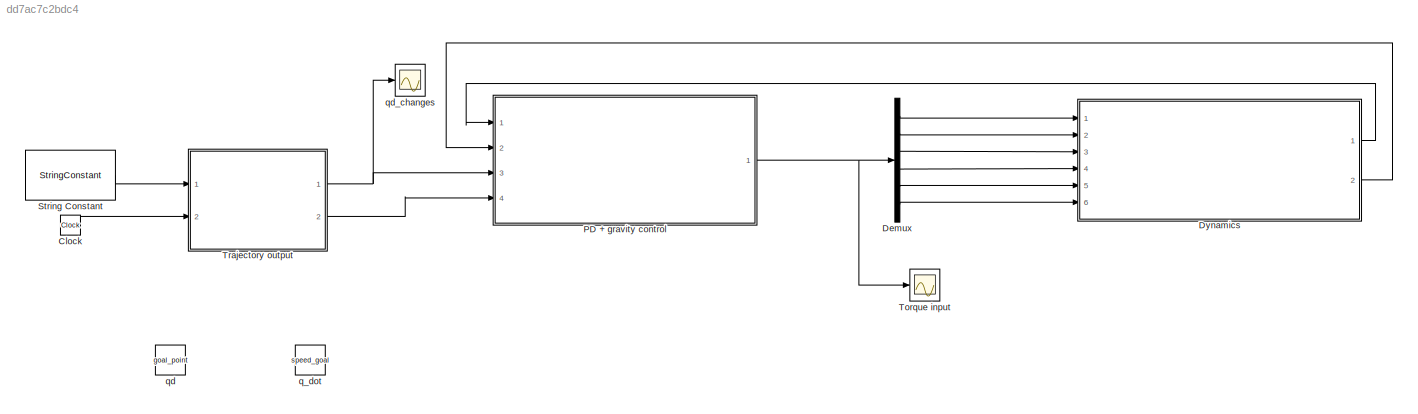
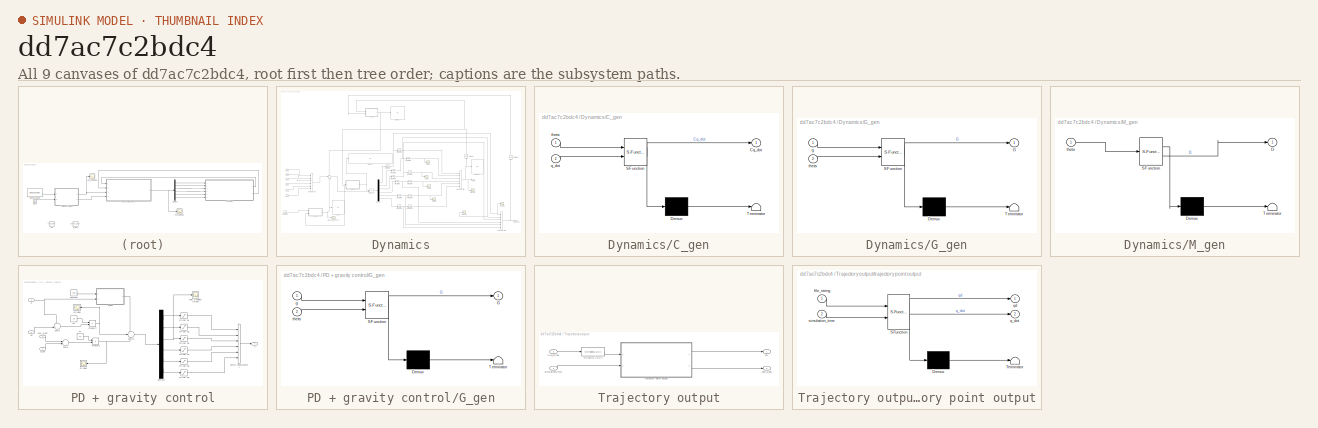
[diagram: thumbnail index - all 9 canvases of the model, root first then tree order]
MODEL slx_dd7ac7c2bdc4
KIND model
CONFIG AbsTol = 1e-4
CONFIG EnableMultiTasking = off
CONFIG FixedStep = 0.001
CONFIG MaxStep = auto
CONFIG MinStep = auto
CONFIG RelTol = 1e-5
CONFIG SampleTimeConstraint = Unconstrained
CONFIG SolverName = FixedStepAuto
CONFIG StartTime = 0.0
CONFIG StopTime = 6.5
BLOCK [Clock] Clock
BLOCK [Demux] Demux
  Outputs = 6
  Ports = [1, 6]
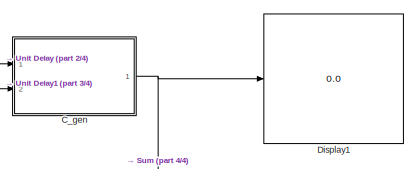
[diagram: Dynamics - part 1/4, top center region]
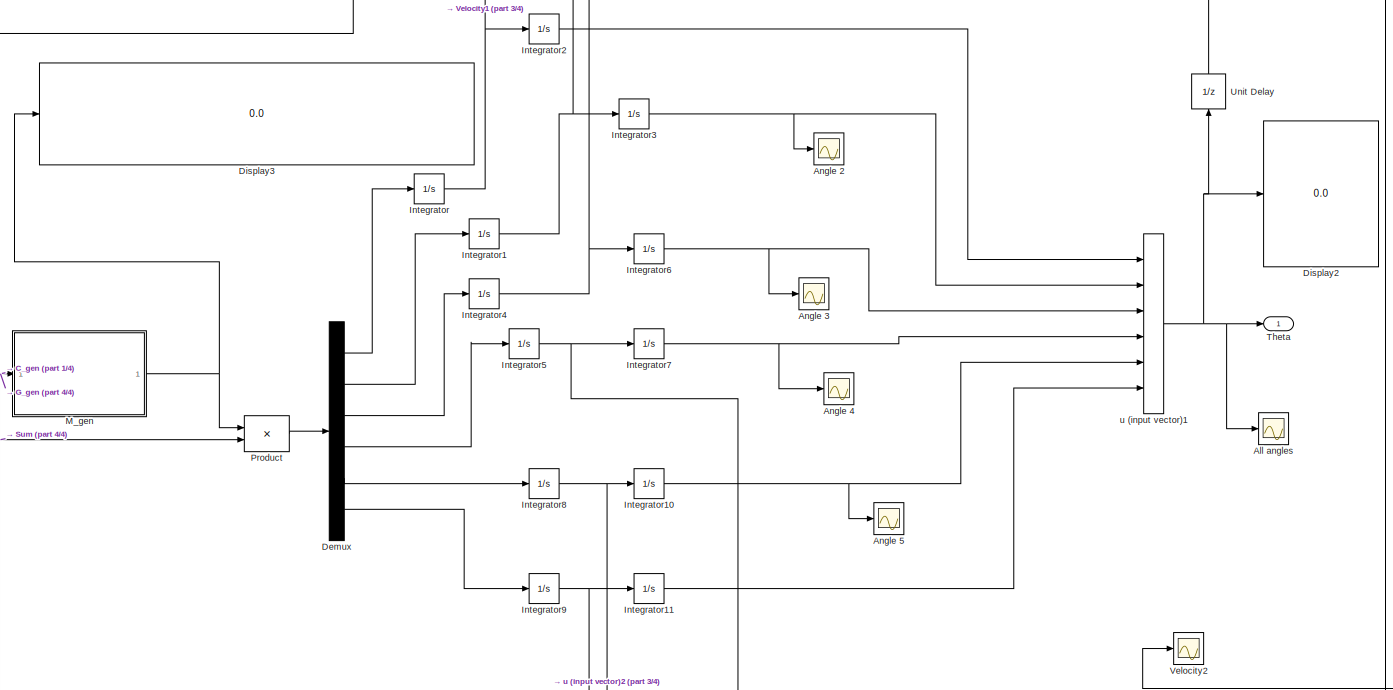
[diagram: Dynamics - part 2/4, central region]
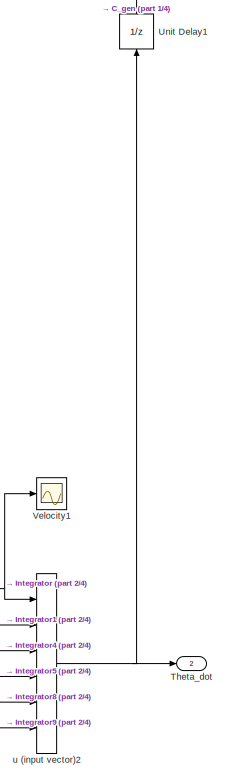
[diagram: Dynamics - part 3/4, bottom right region]
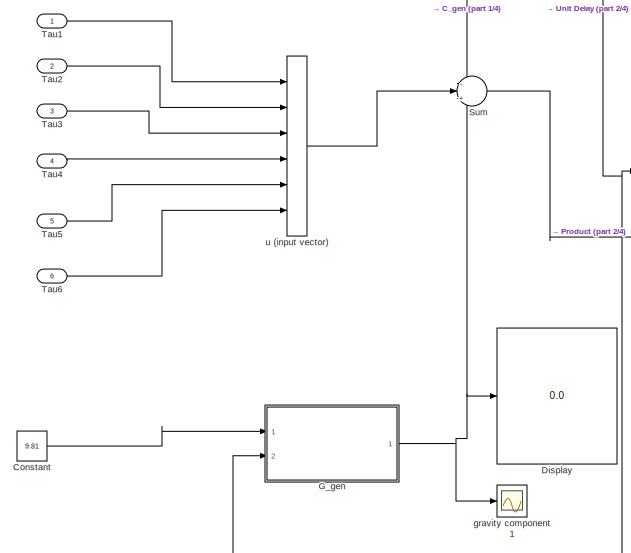
[diagram: Dynamics - part 4/4, bottom left region]
BLOCK [SubSystem] Dynamics
  Ports = [6, 2]
  RequestExecContextInheritance = off
BLOCK [Scope] Dynamics/All angles
  Floating = off
  NumInputPorts = 1
  Ports = [1]
  ScopeSpecificationString = Simulink.scopes.TimeScopeBlockCfg('CurrentConfiguration', extmgr.ConfigurationSet(extmgr.Configuration('Core','General UI',true),extmgr.Configuration('Core','Source UI',true),extmgr.Configuration('Sources','WiredSimulink',true,'DataLoggingVariableName','ScopeData1'),extmgr.Configuration('Visuals','Time Domain',true,'SerializedDisplays',{struct('MinYLimReal','-3.14674','MaxYLimReal','3.14088','YLab...<+1836ch>
BLOCK [Scope] Dynamics/Angle 2
  Floating = off
  NumInputPorts = 1
  Ports = [1]
  ScopeSpecificationString = Simulink.scopes.TimeScopeBlockCfg('CurrentConfiguration', extmgr.ConfigurationSet(extmgr.Configuration('Core','General UI',true),extmgr.Configuration('Core','Source UI',true),extmgr.Configuration('Sources','WiredSimulink',true,'DataLoggingVariableName','ScopeData1'),extmgr.Configuration('Visuals','Time Domain',true,'SerializedDisplays',{struct('MinYLimReal','-1.96506','MaxYLimReal','1.96573','YLab...<+1745ch>
BLOCK [Scope] Dynamics/Angle 3
  Floating = off
  NumInputPorts = 1
  Ports = [1]
  ScopeSpecificationString = Simulink.scopes.TimeScopeBlockCfg('CurrentConfiguration', extmgr.ConfigurationSet(extmgr.Configuration('Core','General UI',true),extmgr.Configuration('Core','Source UI',true),extmgr.Configuration('Sources','WiredSimulink',true,'DataLoggingVariableName','ScopeData2'),extmgr.Configuration('Visuals','Time Domain',true,'SerializedDisplays',{struct('MinYLimReal','-0.2775','MaxYLimReal','1.10636','YLabe...<+1742ch>
BLOCK [Scope] Dynamics/Angle 4
  Floating = off
  NumInputPorts = 1
  Ports = [1]
  ScopeSpecificationString = Simulink.scopes.TimeScopeBlockCfg('CurrentConfiguration', extmgr.ConfigurationSet(extmgr.Configuration('Core','General UI',true),extmgr.Configuration('Core','Source UI',true),extmgr.Configuration('Sources','WiredSimulink',true,'DataLoggingVariableName','ScopeData3'),extmgr.Configuration('Visuals','Time Domain',true,'SerializedDisplays',{struct('MinYLimReal','-0.08661','MaxYLimReal','0.77951','YLab...<+1447ch>
BLOCK [Scope] Dynamics/Angle 5
  Floating = off
  NumInputPorts = 1
  Ports = [1]
  ScopeSpecificationString = Simulink.scopes.TimeScopeBlockCfg('CurrentConfiguration', extmgr.ConfigurationSet(extmgr.Configuration('Core','General UI',true),extmgr.Configuration('Core','Source UI',true),extmgr.Configuration('Sources','WiredSimulink',true,'DataLoggingVariableName','ScopeData4'),extmgr.Configuration('Visuals','Time Domain',true,'SerializedDisplays',{struct('MinYLimReal','-0.04213','MaxYLimReal','0.37916','YLab...<+1419ch>
BLOCK [SubSystem] Dynamics/C_gen
  ErrorFcn = Stateflow.Translate.translate
  PermitHierarchicalResolution = ExplicitOnly
  Ports = [2, 1]
  RequestExecContextInheritance = off
  SFBlockType = MATLAB Function
  TreatAsAtomicUnit = on
BLOCK [Demux] Dynamics/C_gen/ Demux 
  Outputs = 1
  Ports = [1, 1]
BLOCK [S-Function] Dynamics/C_gen/ SFunction 
  EnableBusSupport = on
  FunctionName = sf_sfun
  PortCounts = [2 2]
  Ports = [2, 2]
  SFcnIsStateOwnerBlock = off
  SFunctionDeploymentMode = off
  Tag = Stateflow S-Function 2
BLOCK [Terminator] Dynamics/C_gen/ Terminator 
BLOCK [Outport] Dynamics/C_gen/Cq_dot
BLOCK [Inport] Dynamics/C_gen/q_dot
  Port = 2
BLOCK [Inport] Dynamics/C_gen/theta
BLOCK [Constant] Dynamics/Constant
  Value = 9.81
BLOCK [Demux] Dynamics/Demux
  Outputs = 6
  Ports = [1, 6]
BLOCK [Display] Dynamics/Display
  Decimation = 6
  Format = long
  Ports = [1]
BLOCK [Display] Dynamics/Display1
  Decimation = 6
  Format = long
  Ports = [1]
BLOCK [Display] Dynamics/Display2
  Decimation = 6
  Format = long
  Ports = [1]
BLOCK [Display] Dynamics/Display3
  Decimation = 36
  Ports = [1]
BLOCK [SubSystem] Dynamics/G_gen
  ErrorFcn = Stateflow.Translate.translate
  PermitHierarchicalResolution = ExplicitOnly
  Ports = [2, 1]
  RequestExecContextInheritance = off
  SFBlockType = MATLAB Function
  TreatAsAtomicUnit = on
BLOCK [Demux] Dynamics/G_gen/ Demux 
  Outputs = 1
  Ports = [1, 1]
BLOCK [S-Function] Dynamics/G_gen/ SFunction 
  EnableBusSupport = on
  FunctionName = sf_sfun
  PortCounts = [2 2]
  Ports = [2, 2]
  SFcnIsStateOwnerBlock = off
  SFunctionDeploymentMode = off
  Tag = Stateflow S-Function 1
BLOCK [Terminator] Dynamics/G_gen/ Terminator 
BLOCK [Outport] Dynamics/G_gen/G
BLOCK [Inport] Dynamics/G_gen/g
BLOCK [Inport] Dynamics/G_gen/theta
  Port = 2
BLOCK [Integrator] Dynamics/Integrator
  Ports = [1, 1]
BLOCK [Integrator] Dynamics/Integrator1
  Ports = [1, 1]
BLOCK [Integrator] Dynamics/Integrator10
  Ports = [1, 1]
BLOCK [Integrator] Dynamics/Integrator11
  Ports = [1, 1]
BLOCK [Integrator] Dynamics/Integrator2
  Ports = [1, 1]
BLOCK [Integrator] Dynamics/Integrator3
  Ports = [1, 1]
BLOCK [Integrator] Dynamics/Integrator4
  Ports = [1, 1]
BLOCK [Integrator] Dynamics/Integrator5
  Ports = [1, 1]
BLOCK [Integrator] Dynamics/Integrator6
  Ports = [1, 1]
BLOCK [Integrator] Dynamics/Integrator7
  Ports = [1, 1]
BLOCK [Integrator] Dynamics/Integrator8
  Ports = [1, 1]
BLOCK [Integrator] Dynamics/Integrator9
  Ports = [1, 1]
BLOCK [SubSystem] Dynamics/M_gen
  ErrorFcn = Stateflow.Translate.translate
  PermitHierarchicalResolution = ExplicitOnly
  Ports = [1, 1]
  RequestExecContextInheritance = off
  SFBlockType = MATLAB Function
  TreatAsAtomicUnit = on
BLOCK [Demux] Dynamics/M_gen/ Demux 
  Outputs = 1
  Ports = [1, 1]
BLOCK [S-Function] Dynamics/M_gen/ SFunction 
  EnableBusSupport = on
  FunctionName = sf_sfun
  PortCounts = [1 2]
  Ports = [1, 2]
  SFcnIsStateOwnerBlock = off
  SFunctionDeploymentMode = off
  Tag = Stateflow S-Function 3
BLOCK [Terminator] Dynamics/M_gen/ Terminator 
BLOCK [Outport] Dynamics/M_gen/D
BLOCK [Inport] Dynamics/M_gen/theta
BLOCK [Product] Dynamics/Product
  Multiplication = Matrix(*)
  Ports = [2, 1]
BLOCK [Sum] Dynamics/Sum
  Inputs = -|+|-
  Ports = [3, 1]
BLOCK [Inport] Dynamics/Tau1
BLOCK [Inport] Dynamics/Tau2
  Port = 2
BLOCK [Inport] Dynamics/Tau3
  Port = 3
BLOCK [Inport] Dynamics/Tau4
  Port = 4
BLOCK [Inport] Dynamics/Tau5
  Port = 5
BLOCK [Inport] Dynamics/Tau6
  Port = 6
BLOCK [Outport] Dynamics/Theta
  NameLocation = top
  VectorParamsAs1DForOutWhenUnconnected = off
BLOCK [Outport] Dynamics/Theta_dot
  Port = 2
  VectorParamsAs1DForOutWhenUnconnected = off
BLOCK [UnitDelay] Dynamics/Unit Delay
  HasFrameUpgradeWarning = on
  InitialCondition = [-pi/2;0;0;0;0;0]
  NameLocation = right
  SampleTime = -1
BLOCK [UnitDelay] Dynamics/Unit Delay1
  HasFrameUpgradeWarning = on
  InitialCondition = [0;0;0;0;0;0]
  NameLocation = right
  SampleTime = -1
BLOCK [Scope] Dynamics/Velocity1
  Floating = off
  NumInputPorts = 1
  Ports = [1]
  ScopeSpecificationString = Simulink.scopes.TimeScopeBlockCfg('CurrentConfiguration', extmgr.ConfigurationSet(extmgr.Configuration('Core','General UI',true),extmgr.Configuration('Core','Source UI',true),extmgr.Configuration('Sources','WiredSimulink',true,'DataLoggingVariableName','ScopeData1'),extmgr.Configuration('Visuals','Time Domain',true,'SerializedDisplays',{struct('MinYLimReal','-0.16483','MaxYLimReal','1.30655','YLab...<+1742ch>
BLOCK [Scope] Dynamics/Velocity2
  Floating = off
  NumInputPorts = 1
  Ports = [1]
  ScopeSpecificationString = Simulink.scopes.TimeScopeBlockCfg('CurrentConfiguration', extmgr.ConfigurationSet(extmgr.Configuration('Core','General UI',true),extmgr.Configuration('Core','Source UI',true),extmgr.Configuration('Sources','WiredSimulink',true,'DataLoggingVariableName','ScopeData2'),extmgr.Configuration('Visuals','Time Domain',true,'SerializedDisplays',{struct('MinYLimReal','-2.27561','MaxYLimReal','2.18787','YLab...<+1743ch>
BLOCK [Scope] Dynamics/gravity component 1
  Floating = off
  NumInputPorts = 1
  Ports = [1]
  ScopeSpecificationString = Simulink.scopes.TimeScopeBlockCfg('CurrentConfiguration', extmgr.ConfigurationSet(extmgr.Configuration('Core','General UI',true),extmgr.Configuration('Core','Source UI',true),extmgr.Configuration('Sources','WiredSimulink',true),extmgr.Configuration('Visuals','Time Domain',true,'SerializedDisplays',{struct('MinYLimReal','-1.75793','MaxYLimReal','13.13766','YLabelReal','','MinYLimMag','0.00000','Max...<+1788ch>
BLOCK [Concatenate] Dynamics/u (input vector)
  NumInputs = 6
  Ports = [6, 1]
BLOCK [Concatenate] Dynamics/u (input vector)1
  NumInputs = 6
  Ports = [6, 1]
BLOCK [Concatenate] Dynamics/u (input vector)2
  NumInputs = 6
  Ports = [6, 1]
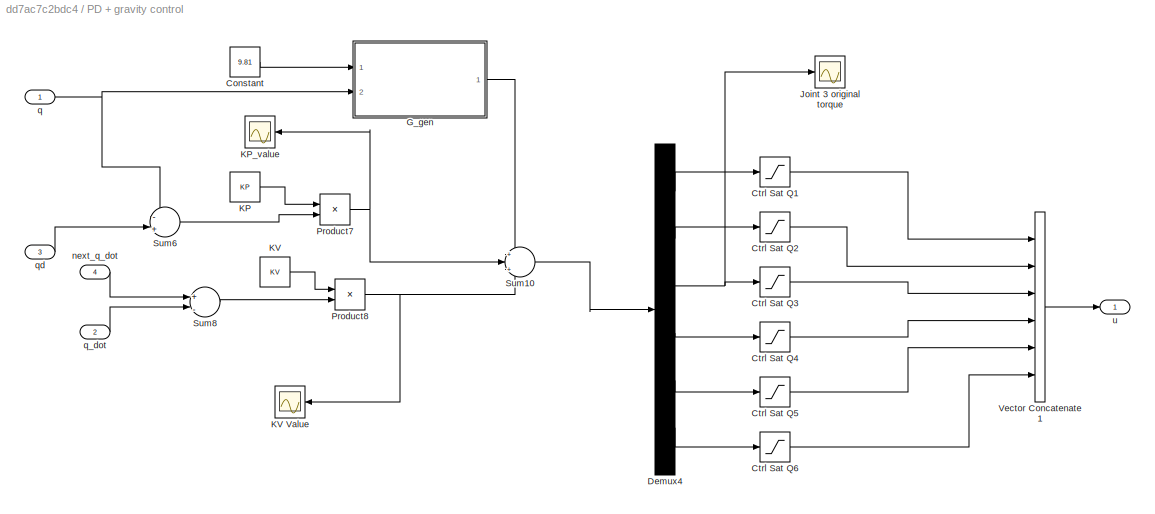
BLOCK [SubSystem] PD + gravity control
  Ports = [4, 1]
  RequestExecContextInheritance = off
BLOCK [Constant] PD + gravity control/Constant
  Value = 9.81
BLOCK [Saturate] PD + gravity control/Ctrl Sat Q1
  LowerLimit = -CtlSat1
  UpperLimit = CtlSat1
BLOCK [Saturate] PD + gravity control/Ctrl Sat Q2
  LowerLimit = -CtlSat2
  UpperLimit = CtlSat2
BLOCK [Saturate] PD + gravity control/Ctrl Sat Q3
  LowerLimit = -CtlSat3
  UpperLimit = CtlSat3
BLOCK [Saturate] PD + gravity control/Ctrl Sat Q4
  LowerLimit = -CtlSat4
  UpperLimit = CtlSat4
BLOCK [Saturate] PD + gravity control/Ctrl Sat Q5
  LowerLimit = -CtlSat5
  UpperLimit = CtlSat5
BLOCK [Saturate] PD + gravity control/Ctrl Sat Q6
  LowerLimit = -CtlSat6
  UpperLimit = CtlSat6
BLOCK [Demux] PD + gravity control/Demux4
  Outputs = 6
  Ports = [1, 6]
BLOCK [SubSystem] PD + gravity control/G_gen
  ErrorFcn = Stateflow.Translate.translate
  PermitHierarchicalResolution = ExplicitOnly
  Ports = [2, 1]
  RequestExecContextInheritance = off
  SFBlockType = MATLAB Function
  TreatAsAtomicUnit = on
BLOCK [Demux] PD + gravity control/G_gen/ Demux 
  Outputs = 1
  Ports = [1, 1]
BLOCK [S-Function] PD + gravity control/G_gen/ SFunction 
  EnableBusSupport = on
  FunctionName = sf_sfun
  PortCounts = [2 2]
  Ports = [2, 2]
  SFcnIsStateOwnerBlock = off
  SFunctionDeploymentMode = off
  Tag = Stateflow S-Function 4
BLOCK [Terminator] PD + gravity control/G_gen/ Terminator 
BLOCK [Outport] PD + gravity control/G_gen/G
BLOCK [Inport] PD + gravity control/G_gen/g
BLOCK [Inport] PD + gravity control/G_gen/theta
  Port = 2
BLOCK [Scope] PD + gravity control/Joint 3 original torque
  Floating = off
  NumInputPorts = 1
  Ports = [1]
  ScopeSpecificationString = Simulink.scopes.TimeScopeBlockCfg('CurrentConfiguration', extmgr.ConfigurationSet(extmgr.Configuration('Core','General UI',true),extmgr.Configuration('Core','Source UI',true),extmgr.Configuration('Sources','WiredSimulink',true,'DataLoggingVariableName','ScopeData2'),extmgr.Configuration('Visuals','Time Domain',true,'SerializedDisplays',{struct('MinYLimReal','-7.13121','MaxYLimReal','12.31431','YLa...<+1719ch>
BLOCK [Constant] PD + gravity control/KP
  Value = KP
BLOCK [Scope] PD + gravity control/KP_value
  Floating = off
  NumInputPorts = 1
  Ports = [1]
  ScopeSpecificationString = Simulink.scopes.TimeScopeBlockCfg('CurrentConfiguration', extmgr.ConfigurationSet(extmgr.Configuration('Core','General UI',true),extmgr.Configuration('Core','Source UI',true),extmgr.Configuration('Sources','WiredSimulink',true,'DataLoggingVariableName','ScopeData1'),extmgr.Configuration('Visuals','Time Domain',true,'SerializedDisplays',{struct('MinYLimReal','-146.93808','MaxYLimReal','976.26796','...<+1477ch>
BLOCK [Constant] PD + gravity control/KV
  Value = KV
BLOCK [Scope] PD + gravity control/KV Value 
  Floating = off
  NumInputPorts = 1
  Ports = [1]
  ScopeSpecificationString = Simulink.scopes.TimeScopeBlockCfg('CurrentConfiguration', extmgr.ConfigurationSet(extmgr.Configuration('Core','General UI',true),extmgr.Configuration('Core','Source UI',true),extmgr.Configuration('Sources','WiredSimulink',true,'DataLoggingVariableName','ScopeData2'),extmgr.Configuration('Visuals','Time Domain',true,'SerializedDisplays',{struct('MinYLimReal','-679.91591','MaxYLimReal','101.48392','...<+1448ch>
BLOCK [Product] PD + gravity control/Product7
  Multiplication = Matrix(*)
  Ports = [2, 1]
BLOCK [Product] PD + gravity control/Product8
  Multiplication = Matrix(*)
  Ports = [2, 1]
BLOCK [Sum] PD + gravity control/Sum10
  Inputs = +|+|+
  Ports = [3, 1]
BLOCK [Sum] PD + gravity control/Sum6
  Inputs = -|+
  Ports = [2, 1]
BLOCK [Sum] PD + gravity control/Sum8
  Inputs = +|-
  Ports = [2, 1]
BLOCK [Concatenate] PD + gravity control/Vector Concatenate1
  NumInputs = 6
  Ports = [6, 1]
BLOCK [Inport] PD + gravity control/next_q_dot
  Port = 4
BLOCK [Inport] PD + gravity control/q
BLOCK [Inport] PD + gravity control/q_dot
  Port = 2
BLOCK [Inport] PD + gravity control/qd
  Port = 3
BLOCK [Outport] PD + gravity control/u
  VectorParamsAs1DForOutWhenUnconnected = off
BLOCK [StringConstant] String Constant
  String = "trajectory_data"
BLOCK [Scope] Torque input
  Floating = off
  NumInputPorts = 1
  Ports = [1]
  ScopeSpecificationString = Simulink.scopes.TimeScopeBlockCfg('CurrentConfiguration', extmgr.ConfigurationSet(extmgr.Configuration('Core','General UI',true),extmgr.Configuration('Core','Source UI',true),extmgr.Configuration('Sources','WiredSimulink',true,'DataLoggingVariableName','ScopeData3'),extmgr.Configuration('Visuals','Time Domain',true,'SerializedDisplays',{struct('MinYLimReal','-16.05226','MaxYLimReal','21.95183','YL...<+1895ch>
BLOCK [SubSystem] Trajectory output
  Ports = [2, 2]
  RequestExecContextInheritance = off
BLOCK [StringToASCII] Trajectory output/String to ASCII
BLOCK [Inport] Trajectory output/file_string
BLOCK [Outport] Trajectory output/next_q_dot
  Port = 2
  VectorParamsAs1DForOutWhenUnconnected = off
BLOCK [Outport] Trajectory output/qd
  VectorParamsAs1DForOutWhenUnconnected = off
BLOCK [Inport] Trajectory output/simulation_time
  Port = 2
BLOCK [SubSystem] Trajectory output/trajectory point output
  ErrorFcn = Stateflow.Translate.translate
  PermitHierarchicalResolution = ExplicitOnly
  Ports = [2, 2]
  RequestExecContextInheritance = off
  SFBlockType = MATLAB Function
  TreatAsAtomicUnit = on
BLOCK [Demux] Trajectory output/trajectory point output/ Demux 
  Outputs = 1
  Ports = [1, 1]
BLOCK [S-Function] Trajectory output/trajectory point output/ SFunction 
  EnableBusSupport = on
  FunctionName = sf_sfun
  PortCounts = [2 3]
  Ports = [2, 3]
  SFcnIsStateOwnerBlock = off
  SFunctionDeploymentMode = off
  Tag = Stateflow S-Function 5
BLOCK [Terminator] Trajectory output/trajectory point output/ Terminator 
BLOCK [Inport] Trajectory output/trajectory point output/file_string
BLOCK [Outport] Trajectory output/trajectory point output/q_dot
  Port = 2
BLOCK [Outport] Trajectory output/trajectory point output/qd
  VectorParamsAs1DForOutWhenUnconnected = off
BLOCK [Inport] Trajectory output/trajectory point output/simulation_time
  Port = 2
BLOCK [Constant] q_dot
  Value = speed_goal
BLOCK [Constant] qd
  Value = goal_point
BLOCK [Scope] qd_changes
  Floating = off
  NumInputPorts = 1
  Ports = [1]
  ScopeSpecificationString = Simulink.scopes.TimeScopeBlockCfg('CurrentConfiguration', extmgr.ConfigurationSet(extmgr.Configuration('Core','General UI',true),extmgr.Configuration('Core','Source UI',true),extmgr.Configuration('Sources','WiredSimulink',true,'DataLoggingVariableName','ScopeData1'),extmgr.Configuration('Visuals','Time Domain',true,'SerializedDisplays',{struct('MinYLimReal','-2.99737','MaxYLimReal','2.99737','YLab...<+1890ch>
LINE Clock:1 -> Trajectory output:2
LINE Demux:1 -> Dynamics:1
LINE Demux:2 -> Dynamics:2
LINE Demux:3 -> Dynamics:3
LINE Demux:4 -> Dynamics:4
LINE Demux:5 -> Dynamics:5
LINE Demux:6 -> Dynamics:6
NET Dynamics/C_gen:1 -> Dynamics/Display1:1, Dynamics/Sum:1
LINE Dynamics/Constant:1 -> Dynamics/G_gen:1
LINE Dynamics/Demux:1 -> Dynamics/Integrator:1
LINE Dynamics/Demux:2 -> Dynamics/Integrator1:1
LINE Dynamics/Demux:3 -> Dynamics/Integrator4:1
LINE Dynamics/Demux:4 -> Dynamics/Integrator5:1
LINE Dynamics/Demux:5 -> Dynamics/Integrator8:1
LINE Dynamics/Demux:6 -> Dynamics/Integrator9:1
NET Dynamics/G_gen:1 -> Dynamics/Display:1, Dynamics/Sum:3, Dynamics/gravity component 1:1
NET Dynamics/Integrator10:1 -> Dynamics/Angle 5:1, Dynamics/u (input vector)1:5
LINE Dynamics/Integrator11:1 -> Dynamics/u (input vector)1:6
NET Dynamics/Integrator1:1 -> Dynamics/Integrator3:1, Dynamics/Velocity2:1, Dynamics/u (input vector)2:2
LINE Dynamics/Integrator2:1 -> Dynamics/u (input vector)1:1
NET Dynamics/Integrator3:1 -> Dynamics/Angle 2:1, Dynamics/u (input vector)1:2
NET Dynamics/Integrator4:1 -> Dynamics/Integrator6:1, Dynamics/u (input vector)2:3
NET Dynamics/Integrator5:1 -> Dynamics/Integrator7:1, Dynamics/u (input vector)2:4
NET Dynamics/Integrator6:1 -> Dynamics/Angle 3:1, Dynamics/u (input vector)1:3
NET Dynamics/Integrator7:1 -> Dynamics/Angle 4:1, Dynamics/u (input vector)1:4
NET Dynamics/Integrator8:1 -> Dynamics/Integrator10:1, Dynamics/u (input vector)2:5
NET Dynamics/Integrator9:1 -> Dynamics/Integrator11:1, Dynamics/u (input vector)2:6
NET Dynamics/Integrator:1 -> Dynamics/Integrator2:1, Dynamics/Velocity1:1, Dynamics/u (input vector)2:1
NET Dynamics/M_gen:1 -> Dynamics/Display3:1, Dynamics/Product:1
LINE Dynamics/Product:1 -> Dynamics/Demux:1
LINE Dynamics/Sum:1 -> Dynamics/Product:2
LINE Dynamics/Tau1:1 -> Dynamics/u (input vector):1
LINE Dynamics/Tau2:1 -> Dynamics/u (input vector):2
LINE Dynamics/Tau3:1 -> Dynamics/u (input vector):3
LINE Dynamics/Tau4:1 -> Dynamics/u (input vector):4
LINE Dynamics/Tau5:1 -> Dynamics/u (input vector):5
LINE Dynamics/Tau6:1 -> Dynamics/u (input vector):6
LINE Dynamics/Unit Delay1:1 -> Dynamics/C_gen:2
NET Dynamics/Unit Delay:1 -> Dynamics/C_gen:1, Dynamics/G_gen:2, Dynamics/M_gen:1
NET Dynamics/u (input vector)1:1 -> Dynamics/All angles:1, Dynamics/Display2:1, Dynamics/Theta:1, Dynamics/Unit Delay:1
NET Dynamics/u (input vector)2:1 -> Dynamics/Theta_dot:1, Dynamics/Unit Delay1:1
LINE Dynamics/u (input vector):1 -> Dynamics/Sum:2
LINE Dynamics:1 -> PD + gravity control:1
LINE Dynamics:2 -> PD + gravity control:2
LINE PD + gravity control/Constant:1 -> PD + gravity control/G_gen:1
LINE PD + gravity control/Ctrl Sat Q1:1 -> PD + gravity control/Vector Concatenate1:1
LINE PD + gravity control/Ctrl Sat Q2:1 -> PD + gravity control/Vector Concatenate1:2
LINE PD + gravity control/Ctrl Sat Q3:1 -> PD + gravity control/Vector Concatenate1:3
LINE PD + gravity control/Ctrl Sat Q4:1 -> PD + gravity control/Vector Concatenate1:4
LINE PD + gravity control/Ctrl Sat Q5:1 -> PD + gravity control/Vector Concatenate1:5
LINE PD + gravity control/Ctrl Sat Q6:1 -> PD + gravity control/Vector Concatenate1:6
LINE PD + gravity control/Demux4:1 -> PD + gravity control/Ctrl Sat Q1:1
LINE PD + gravity control/Demux4:2 -> PD + gravity control/Ctrl Sat Q2:1
NET PD + gravity control/Demux4:3 -> PD + gravity control/Ctrl Sat Q3:1, PD + gravity control/Joint 3 original torque:1
LINE PD + gravity control/Demux4:4 -> PD + gravity control/Ctrl Sat Q4:1
LINE PD + gravity control/Demux4:5 -> PD + gravity control/Ctrl Sat Q5:1
LINE PD + gravity control/Demux4:6 -> PD + gravity control/Ctrl Sat Q6:1
LINE PD + gravity control/G_gen:1 -> PD + gravity control/Sum10:1
LINE PD + gravity control/KP:1 -> PD + gravity control/Product7:1
LINE PD + gravity control/KV:1 -> PD + gravity control/Product8:1
NET PD + gravity control/Product7:1 -> PD + gravity control/KP_value:1, PD + gravity control/Sum10:2
NET PD + gravity control/Product8:1 -> PD + gravity control/KV Value :1, PD + gravity control/Sum10:3
LINE PD + gravity control/Sum10:1 -> PD + gravity control/Demux4:1
LINE PD + gravity control/Sum6:1 -> PD + gravity control/Product7:2
LINE PD + gravity control/Sum8:1 -> PD + gravity control/Product8:2
LINE PD + gravity control/Vector Concatenate1:1 -> PD + gravity control/u:1
LINE PD + gravity control/next_q_dot:1 -> PD + gravity control/Sum8:1
NET PD + gravity control/q:1 -> PD + gravity control/G_gen:2, PD + gravity control/Sum6:1
LINE PD + gravity control/q_dot:1 -> PD + gravity control/Sum8:2
LINE PD + gravity control/qd:1 -> PD + gravity control/Sum6:2
NET PD + gravity control:1 -> Demux:1, Torque input:1
LINE String Constant:1 -> Trajectory output:1
LINE Trajectory output/String to ASCII:1 -> Trajectory output/trajectory point output:1
LINE Trajectory output/file_string:1 -> Trajectory output/String to ASCII:1
LINE Trajectory output/simulation_time:1 -> Trajectory output/trajectory point output:2
LINE Trajectory output/trajectory point output:1 -> Trajectory output/qd:1
LINE Trajectory output/trajectory point output:2 -> Trajectory output/next_q_dot:1
NET Trajectory output:1 -> PD + gravity control:3, qd_changes:1
LINE Trajectory output:2 -> PD + gravity control:4
note: NET lines group one-source signal fan-out (src -> all destinations, sorted); 1:1 wires keep LINE
CHART Dynamics/C_gen states=1 transitions=1
  STATE_LABEL 'eML_blk_kernel()'
  STATE_LABEL "SCRIPT:\nfunction Cq_dot = Get_Cq_dot(theta,   q_dot)\n    Cq_dot = zeros(6,1);\n    eml.extrinsic('C_gen');\n    C_temp = C_gen(theta, q_dot);\n    Cq_dot = C_temp*q_dot;\nend"
CHART Dynamics/M_gen states=1 transitions=1
  STATE_LABEL 'eML_blk_kernel()'
  STATE_LABEL "SCRIPT:\nfunction D = Get_M(theta)\n   D = zeros(6,6);\n   coder.extrinsic('D_gen');\n   D_temp = D_gen(theta);\n   D = inv(D_temp);\n   %D = D + J_rotor;\nend\n"
CHART PD + gravity control/G_gen states=1 transitions=1
  STATE_LABEL 'eML_blk_kernel()'
  STATE_LABEL "SCRIPT:\nfunction G = Get_G( g, theta)\n    G = zeros(6,1);\n    eml.extrinsic('G_gen');\n    G = G_gen(g,theta);\nend\n"
CHART Trajectory output/trajectory point output states=1 transitions=1
  STATE_LABEL 'eML_blk_kernel()'
  STATE_LABEL 'SCRIPT:\nfunction [qd, q_dot] = fcn(file_string, simulation_time)\n    %#codegen\n    %traj_data = [time, pos (1x6), vel(1x6)]\n    trajectory_index = 0;\n    file_string = char(file_string)\n    data_size = zeros(1,2);\n    coder.extrinsic("trajectory_size");\n    coder.extrinsic("trajectory_output");\n    data_size = trajectory_size(file_string);\n    data_all = zeros(data_size(1), data_size(2));\n    data...<+529ch>'
CHART Dynamics/G_gen states=1 transitions=1
  STATE_LABEL 'eML_blk_kernel()'
  STATE_LABEL "SCRIPT:\nfunction G = Get_G( g, theta)\n    G = zeros(6,1);\n    eml.extrinsic('G_gen');\n    G = G_gen(g,theta);\nend\n"
CHART  states=0 transitions=0
CHART  states=0 transitions=0
CHART  states=0 transitions=0
CHART  states=0 transitions=0
CHART  states=0 transitions=0
